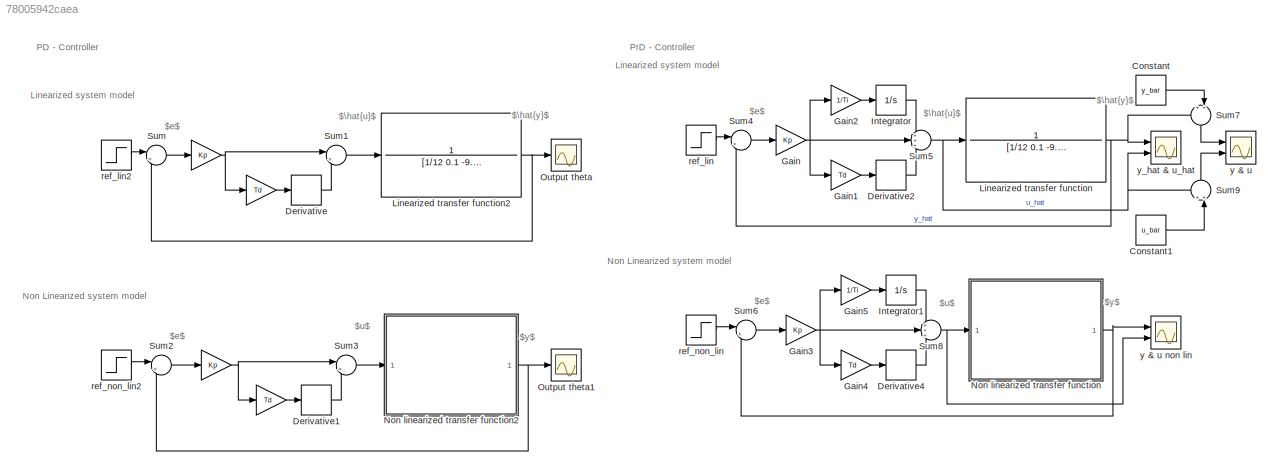
MODEL slx_78005942caea
KIND model
CONFIG AbsTol = auto
CONFIG EnableMultiTasking = off
CONFIG FixedStep = auto
CONFIG MaxStep = auto
CONFIG MinStep = auto
CONFIG RelTol = 1e-3
CONFIG SampleTimeConstraint = Unconstrained
CONFIG SolverName = VariableStepAuto
CONFIG StartTime = 0.0
CONFIG StopTime = 4
BLOCK [Gain]  
  Gain = Td
BLOCK [Gain]   
  Gain = Kp
BLOCK [Gain]      
  Gain = Kp
BLOCK [Gain]               
  Gain = Td
BLOCK [Constant] Constant
  Value = y_bar
BLOCK [Constant] Constant1
  Value = u_bar
BLOCK [Derivative] Derivative
BLOCK [Derivative] Derivative1
BLOCK [Derivative] Derivative2
BLOCK [Derivative] Derivative4
BLOCK [Gain] Gain
  Gain = Kp
BLOCK [Gain] Gain1
  Gain = Td
BLOCK [Gain] Gain2
  Gain = 1/Ti
BLOCK [Gain] Gain3
  Gain = Kp
BLOCK [Gain] Gain4
  Gain = Td
BLOCK [Gain] Gain5
  Gain = 1/Ti
BLOCK [Integrator] Integrator
  Ports = [1, 1]
BLOCK [Integrator] Integrator1
  Ports = [1, 1]
BLOCK [TransferFcn] Linearized transfer function
  Denominator = [1/12 0.1 -9.82/4]
  Numerator = 1
BLOCK [TransferFcn] Linearized transfer function2
  Denominator = [1/12 0.1 -9.82/4]
  Numerator = 1
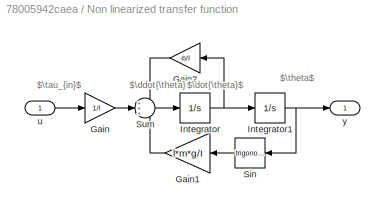
BLOCK [SubSystem] Non linearized transfer function
  Ports = [1, 1]
  RequestExecContextInheritance = off
BLOCK [Gain] Non linearized transfer function/Gain
  Gain = 1/I
BLOCK [Gain] Non linearized transfer function/Gain1
  Gain = l*m*g/I
BLOCK [Gain] Non linearized transfer function/Gain2
  Gain = -b/I
BLOCK [Integrator] Non linearized transfer function/Integrator
  Ports = [1, 1]
BLOCK [Integrator] Non linearized transfer function/Integrator1
  Ports = [1, 1]
BLOCK [Trigonometry] Non linearized transfer function/Sin
  Ports = [1, 1]
BLOCK [Sum] Non linearized transfer function/Sum
  Inputs = +++
  Ports = [3, 1]
BLOCK [Inport] Non linearized transfer function/u
BLOCK [Outport] Non linearized transfer function/y
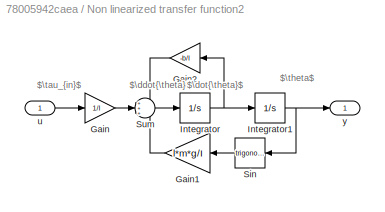
BLOCK [SubSystem] Non linearized transfer function2
  Ports = [1, 1]
  RequestExecContextInheritance = off
BLOCK [Gain] Non linearized transfer function2/Gain
  Gain = 1/I
BLOCK [Gain] Non linearized transfer function2/Gain1
  Gain = l*m*g/I
BLOCK [Gain] Non linearized transfer function2/Gain2
  Gain = -b/I
BLOCK [Integrator] Non linearized transfer function2/Integrator
  Ports = [1, 1]
BLOCK [Integrator] Non linearized transfer function2/Integrator1
  Ports = [1, 1]
BLOCK [Trigonometry] Non linearized transfer function2/Sin
  Ports = [1, 1]
BLOCK [Sum] Non linearized transfer function2/Sum
  Inputs = +++
  Ports = [3, 1]
BLOCK [Inport] Non linearized transfer function2/u
BLOCK [Outport] Non linearized transfer function2/y
BLOCK [Scope] Output theta
  Floating = off
  NumInputPorts = 1
  Ports = [1]
  ScopeSpecificationString = Simulink.scopes.TimeScopeBlockCfg('CurrentConfiguration', extmgr.ConfigurationSet(extmgr.Configuration('Core','General UI',true),extmgr.Configuration('Core','Source UI',true),extmgr.Configuration('Sources','WiredSimulink',true),extmgr.Configuration('Visuals','Time Domain',true,'SerializedDisplays',{struct('MinYLimReal','-0.16099','MaxYLimReal','1.44887','YLabelReal','','MinYLimMag','0.00000','MaxY...<+1423ch>
BLOCK [Scope] Output theta1
  Floating = off
  NumInputPorts = 1
  Ports = [1]
  ScopeSpecificationString = Simulink.scopes.TimeScopeBlockCfg('CurrentConfiguration', extmgr.ConfigurationSet(extmgr.Configuration('Core','General UI',true),extmgr.Configuration('Core','Source UI',true),extmgr.Configuration('Sources','WiredSimulink',true,'DataLoggingVariableName','ScopeData1'),extmgr.Configuration('Visuals','Time Domain',true,'SerializedDisplays',{struct('MinYLimReal','-0.15395','MaxYLimReal','1.38553','YLab...<+1465ch>
BLOCK [Sum] Sum
  Inputs = |+-
  Ports = [2, 1]
BLOCK [Sum] Sum1
  Inputs = |++
  Ports = [2, 1]
BLOCK [Sum] Sum2
  Inputs = |+-
  Ports = [2, 1]
BLOCK [Sum] Sum3
  Inputs = |++
  Ports = [2, 1]
BLOCK [Sum] Sum4
  Inputs = |+-
  Ports = [2, 1]
BLOCK [Sum] Sum5
  Inputs = +++
  Ports = [3, 1]
BLOCK [Sum] Sum6
  Inputs = |+-
  Ports = [2, 1]
BLOCK [Sum] Sum7
  Inputs = ++|
  NameLocation = left
  Ports = [2, 1]
BLOCK [Sum] Sum8
  Inputs = +++
  Ports = [3, 1]
BLOCK [Sum] Sum9
  Inputs = ++|
  NameLocation = right
  Ports = [2, 1]
BLOCK [Step] ref_lin
  After = pi/3
  SampleTime = 0
  Time = 0
BLOCK [Step] ref_lin2
  After = pi/3
  SampleTime = 0
  Time = 0
BLOCK [Step] ref_non_lin
  After = pi/3
  SampleTime = 0
  Time = 0
BLOCK [Step] ref_non_lin2
  After = pi/3
  SampleTime = 0
  Time = 0
BLOCK [Scope] y & u
  Floating = off
  NumInputPorts = 2
  Ports = [2]
  ScopeSpecificationString = Simulink.scopes.TimeScopeBlockCfg('CurrentConfiguration', extmgr.ConfigurationSet(extmgr.Configuration('Core','General UI',true,'FigureColor',[1 1 1]),extmgr.Configuration('Core','Source UI',true),extmgr.Configuration('Sources','WiredSimulink',true,'DataLoggingVariableName','ScopeData1'),extmgr.Configuration('Visuals','Time Domain',true,'SerializedDisplays',{struct('MinYLimReal','0','MaxYLimReal',...<+2298ch>
BLOCK [Scope] y & u non lin
  Floating = off
  NumInputPorts = 2
  Ports = [2]
  ScopeSpecificationString = Simulink.scopes.TimeScopeBlockCfg('CurrentConfiguration', extmgr.ConfigurationSet(extmgr.Configuration('Core','General UI',true,'FigureColor',[1 1 1]),extmgr.Configuration('Core','Source UI',true),extmgr.Configuration('Sources','WiredSimulink',true,'DataLoggingVariableName','ScopeData2'),extmgr.Configuration('Visuals','Time Domain',true,'SerializedDisplays',{struct('MinYLimReal','0','MaxYLimReal',...<+2312ch>
BLOCK [Scope] y_hat & u_hat
  Floating = off
  NumInputPorts = 2
  Ports = [2]
  ScopeSpecificationString = Simulink.scopes.TimeScopeBlockCfg('CurrentConfiguration', extmgr.ConfigurationSet(extmgr.Configuration('Core','General UI',true,'FigureColor',[1 1 1]),extmgr.Configuration('Core','Source UI',true),extmgr.Configuration('Sources','WiredSimulink',true,'DataLoggingVariableName','ScopeData2'),extmgr.Configuration('Visuals','Time Domain',true,'SerializedDisplays',{struct('MinYLimReal','0','MaxYLimReal',...<+2323ch>
ANNOTATION (root): $\hat{y}$
ANNOTATION (root): $\hat{u}$
ANNOTATION (root): $e$
ANNOTATION (root): $u$
ANNOTATION (root): $y$
ANNOTATION (root): Linearized system model
ANNOTATION (root): Non Linearized system model
ANNOTATION (root): PD - Controller
ANNOTATION (root): PID - Controller
ANNOTATION Non linearized transfer function: $\ddot{\theta}$
ANNOTATION Non linearized transfer function: $\dot{\theta}$
ANNOTATION Non linearized transfer function: $\tau_{in}$
ANNOTATION Non linearized transfer function: $\theta$
ANNOTATION Non linearized transfer function2: $\ddot{\theta}$
ANNOTATION Non linearized transfer function2: $\dot{\theta}$
ANNOTATION Non linearized transfer function2: $\tau_{in}$
ANNOTATION Non linearized transfer function2: $\theta$
LINE               :1 -> Derivative1:1
NET      :1 ->               :1, Sum3:1
NET   :1 ->  :1, Sum1:1
LINE  :1 -> Derivative:1
LINE Constant1:1 -> Sum9:2
LINE Constant:1 -> Sum7:2
LINE Derivative1:1 -> Sum3:2
LINE Derivative2:1 -> Sum5:3
LINE Derivative4:1 -> Sum8:3
LINE Derivative:1 -> Sum1:2
LINE Gain1:1 -> Derivative2:1
LINE Gain2:1 -> Integrator:1
NET Gain3:1 -> Gain4:1, Gain5:1, Sum8:2
LINE Gain4:1 -> Derivative4:1
LINE Gain5:1 -> Integrator1:1
NET Gain:1 -> Gain1:1, Gain2:1, Sum5:2
LINE Integrator1:1 -> Sum8:1
LINE Integrator:1 -> Sum5:1
NET Linearized transfer function2:1 -> Output theta:1, Sum:2
NET Linearized transfer function:1 -> Sum4:2, Sum7:1, y_hat & u_hat:1
LINE Non linearized transfer function/Gain1:1 -> Non linearized transfer function/Sum:3
LINE Non linearized transfer function/Gain2:1 -> Non linearized transfer function/Sum:1
LINE Non linearized transfer function/Gain:1 -> Non linearized transfer function/Sum:2
NET Non linearized transfer function/Integrator1:1 -> Non linearized transfer function/Sin:1, Non linearized transfer function/y:1
NET Non linearized transfer function/Integrator:1 -> Non linearized transfer function/Gain2:1, Non linearized transfer function/Integrator1:1
LINE Non linearized transfer function/Sin:1 -> Non linearized transfer function/Gain1:1
LINE Non linearized transfer function/Sum:1 -> Non linearized transfer function/Integrator:1
LINE Non linearized transfer function/u:1 -> Non linearized transfer function/Gain:1
LINE Non linearized transfer function2/Gain1:1 -> Non linearized transfer function2/Sum:3
LINE Non linearized transfer function2/Gain2:1 -> Non linearized transfer function2/Sum:1
LINE Non linearized transfer function2/Gain:1 -> Non linearized transfer function2/Sum:2
NET Non linearized transfer function2/Integrator1:1 -> Non linearized transfer function2/Sin:1, Non linearized transfer function2/y:1
NET Non linearized transfer function2/Integrator:1 -> Non linearized transfer function2/Gain2:1, Non linearized transfer function2/Integrator1:1
LINE Non linearized transfer function2/Sin:1 -> Non linearized transfer function2/Gain1:1
LINE Non linearized transfer function2/Sum:1 -> Non linearized transfer function2/Integrator:1
LINE Non linearized transfer function2/u:1 -> Non linearized transfer function2/Gain:1
NET Non linearized transfer function2:1 -> Output theta1:1, Sum2:2
NET Non linearized transfer function:1 -> Sum6:2, y & u non lin:1
LINE Sum1:1 -> Linearized transfer function2:1
LINE Sum2:1 ->      :1
LINE Sum3:1 -> Non linearized transfer function2:1
LINE Sum4:1 -> Gain:1
NET Sum5:1 -> Linearized transfer function:1, Sum9:1, y_hat & u_hat:2
LINE Sum6:1 -> Gain3:1
LINE Sum7:1 -> y & u:1
NET Sum8:1 -> Non linearized transfer function:1, y & u non lin:2
LINE Sum9:1 -> y & u:2
LINE Sum:1 ->   :1
LINE ref_lin2:1 -> Sum:1
LINE ref_lin:1 -> Sum4:1
LINE ref_non_lin2:1 -> Sum2:1
LINE ref_non_lin:1 -> Sum6:1
note: NET lines group one-source signal fan-out (src -> all destinations, sorted); 1:1 wires keep LINE
